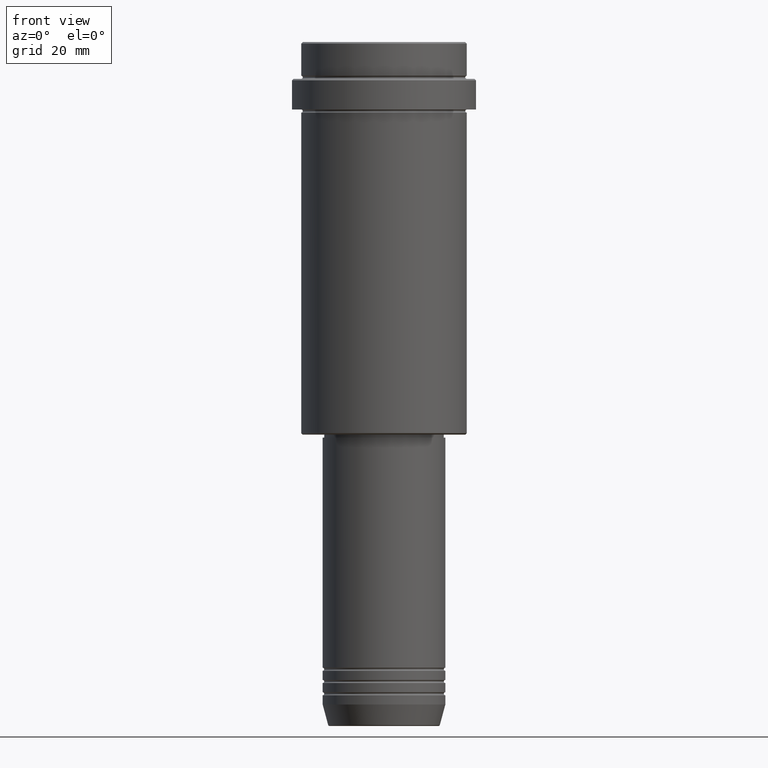
[diagram: clean part render]
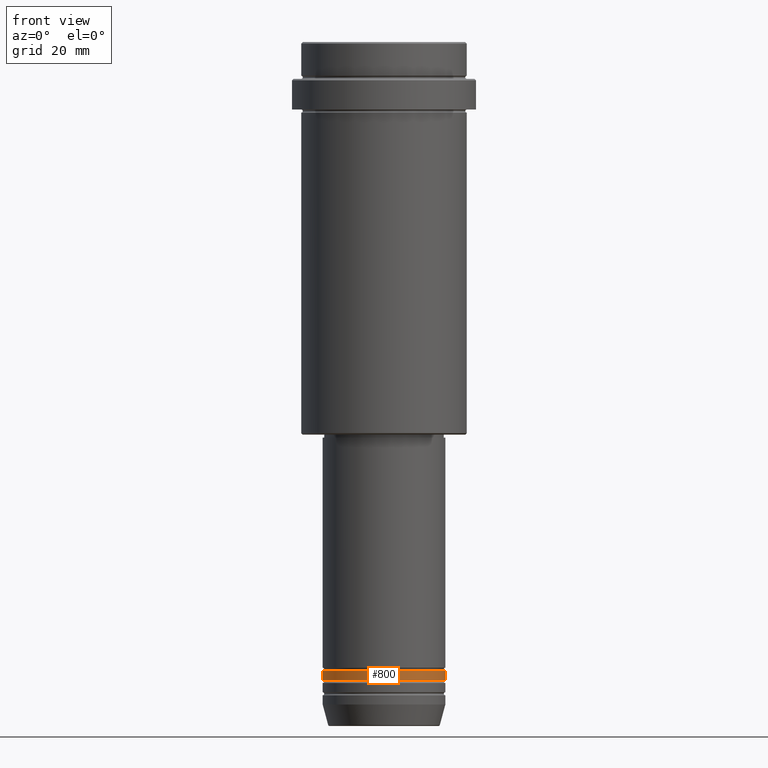
[diagram: same view with one face highlighted and labeled with its STEP entity id]
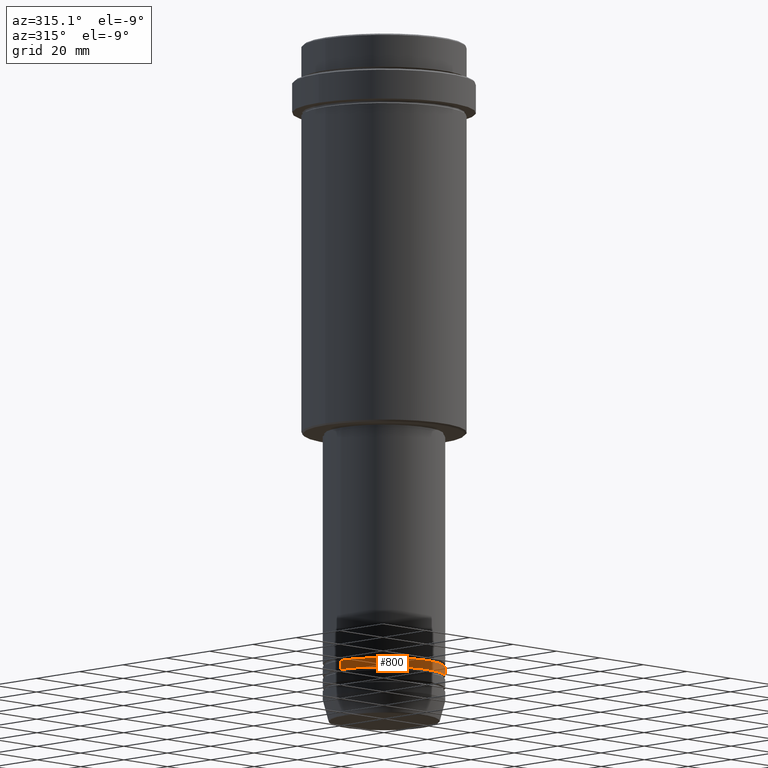
[diagram: same view with one face highlighted and labeled with its STEP entity id]
A machine part, front view. The second image highlights one B-rep face of the part: STEP entity #800.
A second angle (auxiliary view) of the same face is appended — the face is thin or edge-on in the first view.
In plain terms, the highlighted cylindrical surface (partial cylindrical patch) has radius 20 mm, axis along (-0, -0, 1).
Its self-contained STEP definition (entity closure, byte-faithful):
#7 = AXIS2_PLACEMENT_3D ( 'NONE', #661, #1204, #1132 ) ;
#92 = CIRCLE ( 'NONE', #1376, 20.00000000000000000 ) ;
#99 = ORIENTED_EDGE ( 'NONE', *, *, #574, .F. ) ;
#110 = VERTEX_POINT ( 'NONE', #207 ) ;
#189 = ORIENTED_EDGE ( 'NONE', *, *, #1051, .T. ) ;
#207 = CARTESIAN_POINT ( 'NONE',  ( 20.00000000000000000, 0.000000000000000000, -207.9999999999999147 ) ) ;
#234 = FACE_OUTER_BOUND ( 'NONE', #315, .T. ) ;
#315 = EDGE_LOOP ( 'NONE', ( #1356, #779, #189, #99 ) ) ;
#406 = EDGE_CURVE ( 'NONE', #1178, #110, #910, .T. ) ;
#432 = DIRECTION ( 'NONE',  ( 1.000000000000000000, 0.000000000000000000, 0.000000000000000000 ) ) ;
#461 = CARTESIAN_POINT ( 'NONE',  ( -20.00000000000000000, 2.449293598294706513E-15, -207.9999999999999147 ) ) ;
#551 = DIRECTION ( 'NONE',  ( -0.000000000000000000, -0.000000000000000000, 1.000000000000000000 ) ) ;
#568 = CARTESIAN_POINT ( 'NONE',  ( -20.00000000000000000, 2.449293598294706513E-15, -204.9999999999999147 ) ) ;
#574 = EDGE_CURVE ( 'NONE', #826, #710, #92, .T. ) ;
#644 = CARTESIAN_POINT ( 'NONE',  ( 20.00000000000000000, 0.000000000000000000, 0.000000000000000000 ) ) ;
#661 = CARTESIAN_POINT ( 'NONE',  ( 0.000000000000000000, 0.000000000000000000, -207.9999999999999147 ) ) ;
#666 = CARTESIAN_POINT ( 'NONE',  ( -20.00000000000000000, 2.449293598294706513E-15, 0.000000000000000000 ) ) ;
#710 = VERTEX_POINT ( 'NONE', #1267 ) ;
#733 = LINE ( 'NONE', #644, #817 ) ;
#760 = LINE ( 'NONE', #666, #1281 ) ;
#779 = ORIENTED_EDGE ( 'NONE', *, *, #406, .T. ) ;
#800 = ADVANCED_FACE ( 'NONE', ( #234 ), #1189, .T. ) ;
#817 = VECTOR ( 'NONE', #1414, 1000.000000000000000 ) ;
#826 = VERTEX_POINT ( 'NONE', #568 ) ;
#848 = CARTESIAN_POINT ( 'NONE',  ( 0.000000000000000000, 0.000000000000000000, -204.9999999999999147 ) ) ;
#867 = DIRECTION ( 'NONE',  ( -0.000000000000000000, -0.000000000000000000, 1.000000000000000000 ) ) ;
#882 = CARTESIAN_POINT ( 'NONE',  ( 0.000000000000000000, 0.000000000000000000, 0.000000000000000000 ) ) ;
#898 = EDGE_CURVE ( 'NONE', #1178, #826, #760, .T. ) ;
#910 = CIRCLE ( 'NONE', #7, 20.00000000000000000 ) ;
#1006 = DIRECTION ( 'NONE',  ( 1.000000000000000000, 0.000000000000000000, 0.000000000000000000 ) ) ;
#1051 = EDGE_CURVE ( 'NONE', #110, #710, #733, .T. ) ;
#1092 = DIRECTION ( 'NONE',  ( -0.000000000000000000, -0.000000000000000000, 1.000000000000000000 ) ) ;
#1132 = DIRECTION ( 'NONE',  ( 1.000000000000000000, 0.000000000000000000, 0.000000000000000000 ) ) ;
#1178 = VERTEX_POINT ( 'NONE', #461 ) ;
#1189 = CYLINDRICAL_SURFACE ( 'NONE', #1331, 20.00000000000000000 ) ;
#1204 = DIRECTION ( 'NONE',  ( -0.000000000000000000, -0.000000000000000000, 1.000000000000000000 ) ) ;
#1267 = CARTESIAN_POINT ( 'NONE',  ( 20.00000000000000000, 0.000000000000000000, -204.9999999999999147 ) ) ;
#1281 = VECTOR ( 'NONE', #551, 1000.000000000000000 ) ;
#1331 = AXIS2_PLACEMENT_3D ( 'NONE', #882, #1092, #1006 ) ;
#1356 = ORIENTED_EDGE ( 'NONE', *, *, #898, .F. ) ;
#1376 = AXIS2_PLACEMENT_3D ( 'NONE', #848, #867, #432 ) ;
#1414 = DIRECTION ( 'NONE',  ( -0.000000000000000000, -0.000000000000000000, 1.000000000000000000 ) ) ;